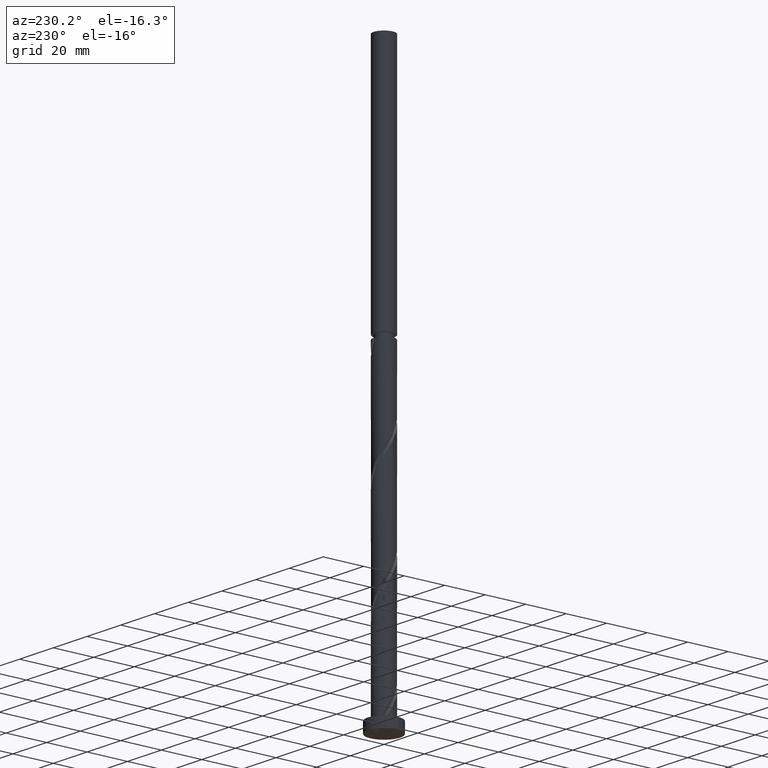
[diagram: clean part render]
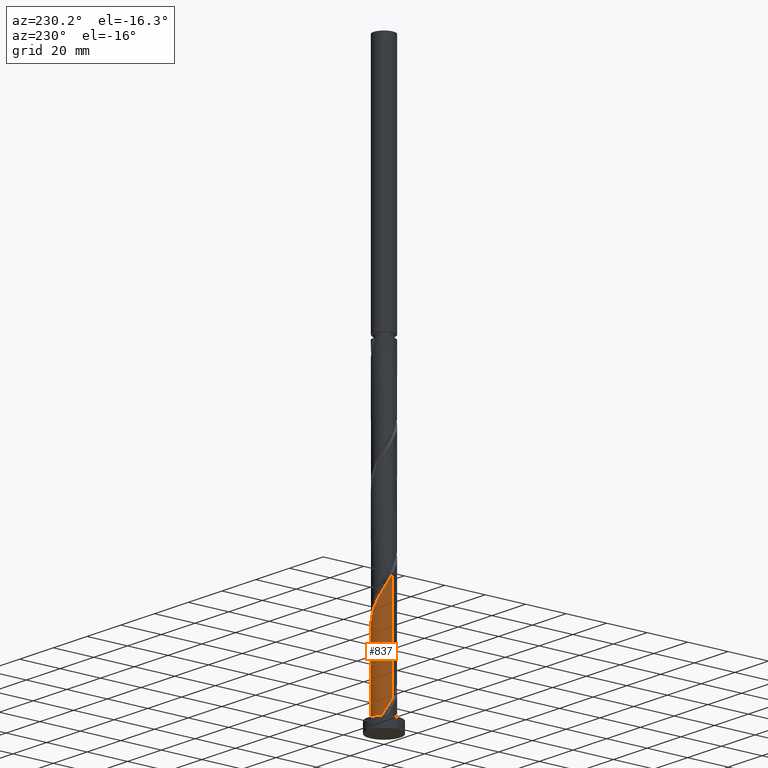
[diagram: same view with one face highlighted and labeled with its STEP entity id]
A machine part, auxiliary view. The second image highlights one B-rep face of the part: STEP entity #837.
In plain terms, the highlighted cylindrical surface (edge-blend (fillet) strip) has radius 5 mm, axis along (-0, -0, -1).
Its self-contained STEP definition (entity closure, byte-faithful):
#6 = CARTESIAN_POINT ( 'NONE',  ( -4.451338784106888546, 2.277187526117663730, 58.21452953022190258 ) ) ;
#44 = CARTESIAN_POINT ( 'NONE',  ( 2.277187526117664174, 4.451338784106887658, 45.08952953022190258 ) ) ;
#57 = CARTESIAN_POINT ( 'NONE',  ( -4.707916197378425593, 1.775642098820955361, 59.15202953022190968 ) ) ;
#89 = DIRECTION ( 'NONE',  ( -0.000000000000000000, -0.000000000000000000, -1.000000000000000000 ) ) ;
#167 = EDGE_CURVE ( 'NONE', #2025, #482, #1880, .T. ) ;
#198 = DIRECTION ( 'NONE',  ( -0.000000000000000000, -0.000000000000000000, -1.000000000000000000 ) ) ;
#205 = CARTESIAN_POINT ( 'NONE',  ( -3.833012532097932912, 3.210609744079815364, 56.33952953022192389 ) ) ;
#217 = CARTESIAN_POINT ( 'NONE',  ( -2.573702359565722464, 4.323590631524826478, 53.52702953022189547 ) ) ;
#223 = CARTESIAN_POINT ( 'NONE',  ( -3.642486534745251525, 3.471263693360513880, 6.652029530221926557 ) ) ;
#232 = CARTESIAN_POINT ( 'NONE',  ( -4.998552303470705560, 0.1203115516804403873, 61.96452953022190258 ) ) ;
#240 = AXIS2_PLACEMENT_3D ( 'NONE', #398, #2266, #2280 ) ;
#245 = CARTESIAN_POINT ( 'NONE',  ( 4.555741235911177966, 2.060393601091442761, 39.46452953022192389 ) ) ;
#327 = EDGE_CURVE ( 'NONE', #1121, #1305, #2329, .T. ) ;
#351 = CIRCLE ( 'NONE', #240, 5.000000000000000000 ) ;
#384 = CARTESIAN_POINT ( 'NONE',  ( 0.6835131349569584236, 4.984996447238927431, 47.90202953022192389 ) ) ;
#398 = CARTESIAN_POINT ( 'NONE',  ( 0.000000000000000000, 0.000000000000000000, 5.000000000000000000 ) ) ;
#412 = CARTESIAN_POINT ( 'NONE',  ( 4.323590631524826478, 2.573702359565721576, 40.40202953022191679 ) ) ;
#425 = CARTESIAN_POINT ( 'NONE',  ( 3.983038583135042998, 3.022483026463119504, 41.33952953022192389 ) ) ;
#482 = VERTEX_POINT ( 'NONE', #1158 ) ;
#520 = EDGE_CURVE ( 'NONE', #2025, #2051, #1631, .T. ) ;
#529 = ORIENTED_EDGE ( 'NONE', *, *, #520, .F. ) ;
#561 = CARTESIAN_POINT ( 'NONE',  ( 5.000000000000000000, 6.123233995736766282E-16, 276.6500000000000341 ) ) ;
#579 = CARTESIAN_POINT ( 'NONE',  ( -2.060393601091443649, 4.555741235911177966, 52.58952953022190968 ) ) ;
#620 = CARTESIAN_POINT ( 'NONE',  ( -4.194761370835350611, 2.778732953414372542, 57.27702953022192389 ) ) ;
#712 = LINE ( 'NONE', #738, #2238 ) ;
#714 = ORIENTED_EDGE ( 'NONE', *, *, #2303, .T. ) ;
#738 = CARTESIAN_POINT ( 'NONE',  ( -5.000000000000000000, 0.000000000000000000, 276.6500000000000341 ) ) ;
#751 = CARTESIAN_POINT ( 'NONE',  ( -3.022483026463119504, 3.983038583135042554, 54.46452953022190968 ) ) ;
#765 = CARTESIAN_POINT ( 'NONE',  ( 4.787891840297527679, 1.547084842617165057, 38.52702953022191679 ) ) ;
#797 = CARTESIAN_POINT ( 'NONE',  ( 0.1203115516804415808, 4.998552303470705560, 48.83952953022190968 ) ) ;
#802 = CARTESIAN_POINT ( 'NONE',  ( -5.000000000000000000, 0.5025189076296135982, 12.17577552916436190 ) ) ;
#837 = ADVANCED_FACE ( 'NONE', ( #2201 ), #2332, .T. ) ;
#938 = CARTESIAN_POINT ( 'NONE',  ( -5.000000000000007994, -1.309736626513939719E-14, 62.16501245231589223 ) ) ;
#975 = CARTESIAN_POINT ( 'NONE',  ( -5.000000000000000888, 1.429889103362237249E-14, 13.01404660812795555 ) ) ;
#995 = CARTESIAN_POINT ( 'NONE',  ( -4.846456322308676512, 1.229577616888956282, 60.08952953022189547 ) ) ;
#1015 = CARTESIAN_POINT ( 'NONE',  ( -5.000000000000000888, 1.429889103362237249E-14, 13.01404660812795555 ) ) ;
#1105 = ORIENTED_EDGE ( 'NONE', *, *, #167, .T. ) ;
#1121 = VERTEX_POINT ( 'NONE', #1015 ) ;
#1144 = CARTESIAN_POINT ( 'NONE',  ( -0.4428900315960752065, 5.012108159702488130, 49.77702953022190968 ) ) ;
#1158 = CARTESIAN_POINT ( 'NONE',  ( 5.000000000000000000, 6.123233995736766282E-16, 5.000000000000000000 ) ) ;
#1188 = CARTESIAN_POINT ( 'NONE',  ( 1.775642098820956027, 4.707916197378423817, 46.02702953022191679 ) ) ;
#1199 = CARTESIAN_POINT ( 'NONE',  ( -3.471263693360517877, 3.642486534745257742, 55.40202953022190968 ) ) ;
#1270 = CARTESIAN_POINT ( 'NONE',  ( 0.000000000000000000, 0.000000000000000000, 276.6500000000000341 ) ) ;
#1305 = VERTEX_POINT ( 'NONE', #2120 ) ;
#1339 = CARTESIAN_POINT ( 'NONE',  ( -1.547084842617166167, 4.787891840297527679, 51.65202953022189547 ) ) ;
#1347 = CARTESIAN_POINT ( 'NONE',  ( -4.323590631524821148, 2.573702359565718911, 8.527029530221915010 ) ) ;
#1354 = CARTESIAN_POINT ( 'NONE',  ( 3.642486534745257742, 3.471263693360517433, 42.27702953022191679 ) ) ;
#1361 = CARTESIAN_POINT ( 'NONE',  ( -4.555741235911170861, 2.060393601091441873, 9.464529530221920339 ) ) ;
#1519 = CARTESIAN_POINT ( 'NONE',  ( 5.000000000000007105, 0.5025189076296034951, 36.75328353127945746 ) ) ;
#1556 = CARTESIAN_POINT ( 'NONE',  ( -4.787891840297520574, 1.547084842617165279, 10.40202953022192922 ) ) ;
#1631 =( BOUNDED_CURVE ( )  B_SPLINE_CURVE ( 2, ( #2113, #1519, #2267, #765, #245, #412, #425, #1354, #1728, #1904, #44, #1188, #1920, #384, #797, #1144, #1934, #1339, #579, #217, #751, #1199, #205, #620, #6, #57, #995, #2296, #232, #2282, #938 ),
 .UNSPECIFIED., .F., .T. ) 
 B_SPLINE_CURVE_WITH_KNOTS ( ( 3, 2, 2, 2, 2, 2, 2, 2, 2, 2, 2, 2, 2, 2, 2, 3 ),
 ( 0.1795303401299220558, 0.1875000000000000000, 0.1964285714285713969, 0.2053571428571429047, 0.2142857142857143016, 0.2232142857142856984, 0.2321428571428570953, 0.2410714285714286031, 0.2500000000000000000, 0.2589285714285713969, 0.2678571428571429047, 0.2767857142857143016, 0.2857142857142856984, 0.2946428571428570953, 0.3035714285714286031, 0.3045303401299221946 ),
 .UNSPECIFIED. ) 
 CURVE ( )  GEOMETRIC_REPRESENTATION_ITEM ( )  RATIONAL_B_SPLINE_CURVE ( ( 0.9079949616361903120, 0.9039886423360534717, 0.9090909090909201629, 0.9033747362665951464, 0.9090909090909201629, 0.9033747362665951464, 0.9090909090909201629, 0.9033747362665951464, 0.9090909090909201629, 0.9033747362665951464, 0.9090909090909201629, 0.9033747362665951464, 0.9090909090909201629, 0.9033747362665951464, 0.9090909090909201629, 0.9033747362665951464, 0.9090909090909201629, 0.9033747362665951464, 0.9090909090909201629, 0.9033747362665951464, 0.9090909090909201629, 0.9033747362665951464, 0.9090909090909201629, 0.9033747362665951464, 0.9090909090909201629, 0.9033747362665951464, 0.9090909090909201629, 0.9033747362665951464, 0.9090909090909201629, 0.9084770030214618375, 0.9079949616361900899 ) ) 
 REPRESENTATION_ITEM ( '' )  );
#1633 = EDGE_CURVE ( 'NONE', #2051, #1121, #712, .T. ) ;
#1728 = CARTESIAN_POINT ( 'NONE',  ( 3.210609744079815364, 3.833012532097932468, 43.21452953022192389 ) ) ;
#1750 = CARTESIAN_POINT ( 'NONE',  ( -3.046518962922716955, 3.970458328709578488, 5.358328153672499816 ) ) ;
#1826 = CARTESIAN_POINT ( 'NONE',  ( 5.000000000000006217, -1.686612407932480338E-15, 35.91501245231585671 ) ) ;
#1880 = LINE ( 'NONE', #561, #2281 ) ;
#1904 = CARTESIAN_POINT ( 'NONE',  ( 2.778732953414372986, 4.194761370835349723, 44.15202953022192389 ) ) ;
#1920 = CARTESIAN_POINT ( 'NONE',  ( 1.229577616888956726, 4.846456322308676512, 46.96452953022189547 ) ) ;
#1923 = ORIENTED_EDGE ( 'NONE', *, *, #1633, .F. ) ;
#1927 = CARTESIAN_POINT ( 'NONE',  ( -4.899999999999999467, 0.9949874371066207424, 11.33952953022190968 ) ) ;
#1934 = CARTESIAN_POINT ( 'NONE',  ( -0.9949874371066197432, 4.900000000000005684, 50.71452953022190968 ) ) ;
#1950 = AXIS2_PLACEMENT_3D ( 'NONE', #1270, #89, #2017 ) ;
#1986 = CARTESIAN_POINT ( 'NONE',  ( -5.000000000000007994, -1.309736626513939719E-14, 62.16501245231589223 ) ) ;
#2012 = ORIENTED_EDGE ( 'NONE', *, *, #327, .F. ) ;
#2017 = DIRECTION ( 'NONE',  ( -1.000000000000000000, 0.000000000000000000, 0.000000000000000000 ) ) ;
#2025 = VERTEX_POINT ( 'NONE', #1826 ) ;
#2051 = VERTEX_POINT ( 'NONE', #1986 ) ;
#2106 = CARTESIAN_POINT ( 'NONE',  ( -3.210609744079810035, 3.833012532097928471, 5.714529530221916787 ) ) ;
#2113 = CARTESIAN_POINT ( 'NONE',  ( 5.000000000000005329, -1.686612407932480338E-15, 35.91501245231585671 ) ) ;
#2118 = CARTESIAN_POINT ( 'NONE',  ( -3.983038583135036337, 3.022483026463115952, 7.589529530221906128 ) ) ;
#2120 = CARTESIAN_POINT ( 'NONE',  ( -2.871281988442552446, 4.093377547068604017, 4.999999999999989342 ) ) ;
#2201 = FACE_OUTER_BOUND ( 'NONE', #2390, .T. ) ;
#2238 = VECTOR ( 'NONE', #2257, 1000.000000000000000 ) ;
#2257 = DIRECTION ( 'NONE',  ( -0.000000000000000000, -0.000000000000000000, -1.000000000000000000 ) ) ;
#2266 = DIRECTION ( 'NONE',  ( 0.000000000000000000, 0.000000000000000000, 1.000000000000000000 ) ) ;
#2267 = CARTESIAN_POINT ( 'NONE',  ( 4.900000000000005684, 0.9949874371066202983, 37.58952953022190968 ) ) ;
#2280 = DIRECTION ( 'NONE',  ( 1.000000000000000000, 0.000000000000000000, 0.000000000000000000 ) ) ;
#2281 = VECTOR ( 'NONE', #198, 1000.000000000000000 ) ;
#2282 = CARTESIAN_POINT ( 'NONE',  ( -5.000000000000007105, 0.06016448583194625860, 62.06464976409078105 ) ) ;
#2296 = CARTESIAN_POINT ( 'NONE',  ( -4.984996447238927431, 0.6835131349569573134, 61.02702953022191679 ) ) ;
#2303 = EDGE_CURVE ( 'NONE', #482, #1305, #351, .T. ) ;
#2304 = CARTESIAN_POINT ( 'NONE',  ( -2.871281988442552890, 4.093377547068604017, 4.999999999999989342 ) ) ;
#2329 =( BOUNDED_CURVE ( )  B_SPLINE_CURVE ( 2, ( #975, #802, #1927, #1556, #1361, #1347, #2118, #223, #2106, #1750, #2304 ),
 .UNSPECIFIED., .F., .T. ) 
 B_SPLINE_CURVE_WITH_KNOTS ( ( 3, 2, 2, 2, 2, 3 ),
 ( 0.9295303401299221946, 0.9375000000000000000, 0.9464285714285713969, 0.9553571428571429047, 0.9642857142857143016, 0.9676913862319646009 ),
 .UNSPECIFIED. ) 
 CURVE ( )  GEOMETRIC_REPRESENTATION_ITEM ( )  RATIONAL_B_SPLINE_CURVE ( ( 0.9079949616361835396, 0.9039886423360469214, 0.9090909090909136125, 0.9033747362665885960, 0.9090909090909136125, 0.9033747362665885960, 0.9090909090909136125, 0.9033747362665885960, 0.9090909090909136125, 0.9069105592350086287, 0.9063935339986515238 ) ) 
 REPRESENTATION_ITEM ( '' )  );
#2332 = CYLINDRICAL_SURFACE ( 'NONE', #1950, 5.000000000000000000 ) ;
#2390 = EDGE_LOOP ( 'NONE', ( #529, #1105, #714, #2012, #1923 ) ) ;